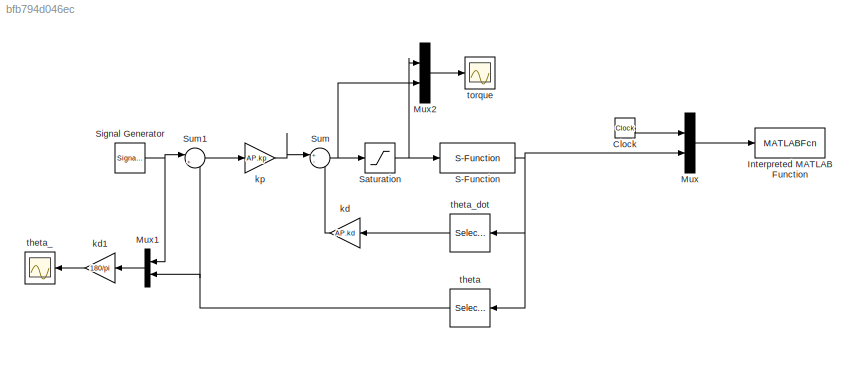
MODEL slx_bfb794d046ec
KIND model
CONFIG InitFcn = param
BLOCK [Clock] Clock
BLOCK [MATLABFcn] Interpreted MATLAB Function
  OutputDimensions = 0
  Ports = [1]
  SampleTime = 0.01
BLOCK [Mux] Mux
  DisplayOption = bar
  Inputs = 2
  Ports = [2, 1]
BLOCK [Mux] Mux1
  DisplayOption = bar
  Inputs = 2
  Ports = [2, 1]
BLOCK [Mux] Mux2
  DisplayOption = bar
  Inputs = 2
  Ports = [2, 1]
BLOCK [S-Function] S-Function
  EnableBusSupport = off
  FunctionName = can_dynamics
  Parameters = AP
  Ports = [1, 1]
BLOCK [Saturate] Saturation
  InputPortMap = u0
  LowerLimit = -AP.F_max
  Ports = [1, 1]
  SampleTime = AP.Ts
  UpperLimit = AP.F_max
BLOCK [SignalGenerator] Signal Generator
  Amplitude = pi/3
  Ports = [0, 1]
BLOCK [Sum] Sum
  IconShape = round
  InputSameDT = off
  Inputs = +-
  OutDataTypeStr = Inherit: Inherit via internal rule
  Ports = [2, 1]
  SaturateOnIntegerOverflow = off
BLOCK [Sum] Sum1
  IconShape = round
  InputSameDT = off
  Inputs = |+-
  OutDataTypeStr = Inherit: Inherit via internal rule
  Ports = [2, 1]
  SampleTime = AP.Ts
  SaturateOnIntegerOverflow = off
BLOCK [Gain] kd
  Gain = AP.kd
  OutDataTypeStr = Inherit: Inherit via internal rule
  ParamDataTypeStr = Inherit: Inherit via internal rule
  SaturateOnIntegerOverflow = off
BLOCK [Gain] kd1
  Gain = 180/pi
  OutDataTypeStr = Inherit: Inherit via internal rule
  ParamDataTypeStr = Inherit: Inherit via internal rule
  SaturateOnIntegerOverflow = off
BLOCK [Gain] kp
  Gain = AP.kp
  OutDataTypeStr = Inherit: Inherit via internal rule
  ParamDataTypeStr = Inherit: Inherit via internal rule
  SaturateOnIntegerOverflow = off
BLOCK [Selector] theta
  IndexOptions = Index vector (dialog)
  Indices = 1
  InputPortWidth = 2
  OutputSizes = 1
  Ports = [1, 1]
BLOCK [Scope] theta_
  DataFormat = StructureWithTime
  Floating = off
  NumInputPorts = 1
  Ports = [1]
  SampleTime = 0
  SaveName = ScopeData1
  ShowLegends = off
  TimeRange = 5
  YMax = 60
  YMin = -60
BLOCK [Selector] theta_dot
  IndexOptions = Index vector (dialog)
  Indices = 2
  InputPortWidth = 2
  OutputSizes = 1
  Ports = [1, 1]
BLOCK [Scope] torque
  DataFormat = StructureWithTime
  Floating = off
  NumInputPorts = 1
  Ports = [1]
  SampleTime = 0
  ShowLegends = off
  TimeRange = 5
  YMax = 0.12
  YMin = -0.08
LINE Clock:1 -> Mux:1
LINE Mux1:1 -> kd1:1
LINE Mux2:1 -> torque:1
LINE Mux:1 -> Interpreted MATLAB Function:1
NET S-Function:1 -> Mux:2, theta:1, theta_dot:1
NET Saturation:1 -> Mux2:1, S-Function:1
NET Signal Generator:1 -> Mux1:1, Sum1:1
LINE Sum1:1 -> kp:1
NET Sum:1 -> Mux2:2, Saturation:1
LINE kd1:1 -> theta_:1
LINE kd:1 -> Sum:2
LINE kp:1 -> Sum:1
NET theta:1 -> Mux1:2, Sum1:2
LINE theta_dot:1 -> kd:1
note: NET lines group one-source signal fan-out (src -> all destinations, sorted); 1:1 wires keep LINE
